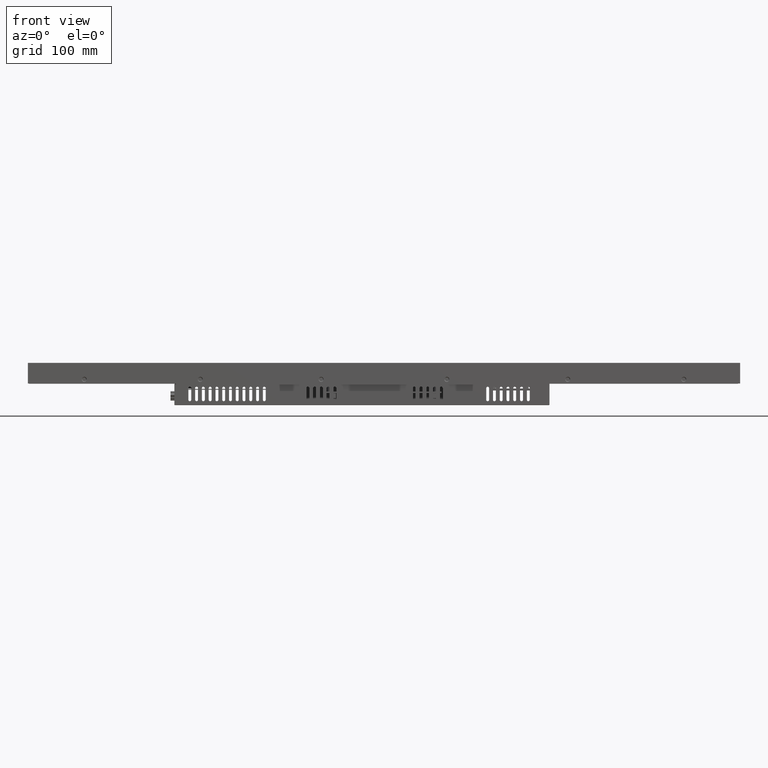
[diagram: clean part render]
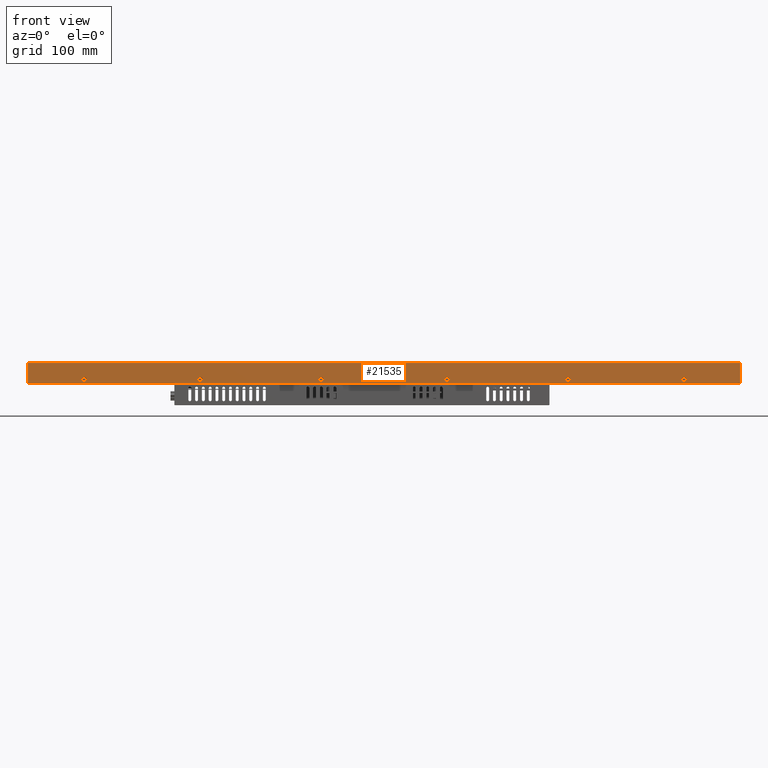
[diagram: same view with one face highlighted and labeled with its STEP entity id]
A machine part, front view. The second image highlights one B-rep face of the part: STEP entity #21535.
In plain terms, the highlighted planar face has unit normal (0, -1, 0).
Its self-contained STEP definition (entity closure, byte-faithful):
#3020 = CARTESIAN_POINT ( 'NONE',  ( -368.2999999999968300, -83.15000000000000600, -21.29999999999999700 ) ) ;
#3028 = CARTESIAN_POINT ( 'NONE',  ( 368.3000000000000100, -83.15000000000009100, -21.29999999999999700 ) ) ;
#3161 = CARTESIAN_POINT ( 'NONE',  ( -187.4505622576270700, -83.15000000000000600, -17.00000009480581700 ) ) ;
#3185 = CARTESIAN_POINT ( 'NONE',  ( -307.4505622576271000, -83.15000000000000600, -17.00000009480578800 ) ) ;
#3205 = CARTESIAN_POINT ( 'NONE',  ( -307.4505622988629600, -83.15000000000000600, -18.50146745895591500 ) ) ;
#3206 = CARTESIAN_POINT ( 'NONE',  ( -307.4505622576271000, -83.15000000000000600, -17.00000009480578800 ) ) ;
#3207 =( BOUNDED_CURVE ( )  B_SPLINE_CURVE ( 3, ( #3206, #3205, #3249, #3248, #3247, #3246, #3245 ),
 .UNSPECIFIED., .F., .T. ) 
 B_SPLINE_CURVE_WITH_KNOTS ( ( 4, 3, 4 ),
 ( 2.441996910364082200E-011, 0.003984535641498446400, 0.007969071362408345800 ),
 .UNSPECIFIED. ) 
 CURVE ( )  GEOMETRIC_REPRESENTATION_ITEM ( )  RATIONAL_B_SPLINE_CURVE ( ( 1.156758910706145300, 0.9380307557074643000, 0.9481987073490826300, 1.187262765631000200, 0.9481987011194077400, 0.9380307551775390900, 1.156758927805394200 ) ) 
 REPRESENTATION_ITEM ( '' )  );
#3220 = CARTESIAN_POINT ( 'NONE',  ( -312.5494377423614200, -83.15000000000000600, -17.00000035001716400 ) ) ;
#3234 = VECTOR ( 'NONE', #3260, 1000.000000000000000 ) ;
#3235 = CARTESIAN_POINT ( 'NONE',  ( -381.3679999999999900, -83.15000000000000600, -21.29999999999999700 ) ) ;
#3236 = LINE ( 'NONE', #3235, #3234 ) ;
#3245 = CARTESIAN_POINT ( 'NONE',  ( -312.5494377423614200, -83.15000000000000600, -17.00000035001716400 ) ) ;
#3246 = CARTESIAN_POINT ( 'NONE',  ( -312.5494375255453900, -83.15000000000002000, -18.50146779701918100 ) ) ;
#3247 = CARTESIAN_POINT ( 'NONE',  ( -311.4853663457581100, -83.15000000000002000, -19.54943785690055700 ) ) ;
#3248 = CARTESIAN_POINT ( 'NONE',  ( -309.9999998033813400, -83.14999999999999100, -19.54943774233365200 ) ) ;
#3249 = CARTESIAN_POINT ( 'NONE',  ( -308.5146333093807100, -83.15000000000000600, -19.54943762776676100 ) ) ;
#3255 = CARTESIAN_POINT ( 'NONE',  ( -192.5494377423615900, -83.15000000000002000, -17.00000035001716400 ) ) ;
#3260 = DIRECTION ( 'NONE',  ( 1.000000000000000000, 0.0000000000000000000, 0.0000000000000000000 ) ) ;
#3290 = CARTESIAN_POINT ( 'NONE',  ( -192.5494377423615900, -83.15000000000002000, -17.00000035001716400 ) ) ;
#3291 = CARTESIAN_POINT ( 'NONE',  ( -192.5494375255453000, -83.15000000000002000, -18.50146779701917800 ) ) ;
#3292 = CARTESIAN_POINT ( 'NONE',  ( -191.4853663457581400, -83.15000000000002000, -19.54943785690054300 ) ) ;
#3293 = CARTESIAN_POINT ( 'NONE',  ( -189.9999998033812900, -83.14999999999999100, -19.54943774233364500 ) ) ;
#3294 = CARTESIAN_POINT ( 'NONE',  ( -188.5146333093808000, -83.15000000000003400, -19.54943762776675700 ) ) ;
#3295 = CARTESIAN_POINT ( 'NONE',  ( -187.4505622988629100, -83.15000000000003400, -18.50146745895594000 ) ) ;
#3296 = CARTESIAN_POINT ( 'NONE',  ( -187.4505622576270700, -83.15000000000000600, -17.00000009480581700 ) ) ;
#3297 =( BOUNDED_CURVE ( )  B_SPLINE_CURVE ( 3, ( #3296, #3295, #3294, #3293, #3292, #3291, #3290 ),
 .UNSPECIFIED., .F., .T. ) 
 B_SPLINE_CURVE_WITH_KNOTS ( ( 4, 3, 4 ),
 ( 2.441996910364082200E-011, 0.003984535641498490600, 0.007969071362408484600 ),
 .UNSPECIFIED. ) 
 CURVE ( )  GEOMETRIC_REPRESENTATION_ITEM ( )  RATIONAL_B_SPLINE_CURVE ( ( 1.156758910706138700, 0.9380307557074644100, 0.9481987073490849600, 1.187262765631000200, 0.9481987011194069600, 0.9380307551775390900, 1.156758927805396500 ) ) 
 REPRESENTATION_ITEM ( '' )  );
#3332 =( BOUNDED_CURVE ( )  B_SPLINE_CURVE ( 3, ( #3371, #3370, #3369, #3368, #3367, #3366, #3365 ),
 .UNSPECIFIED., .F., .F. ) 
 B_SPLINE_CURVE_WITH_KNOTS ( ( 4, 3, 4 ),
 ( 1.783185539664482600E-011, 0.003984536071322613900, 0.007969072228644812100 ),
 .UNSPECIFIED. ) 
 CURVE ( )  GEOMETRIC_REPRESENTATION_ITEM ( )  RATIONAL_B_SPLINE_CURVE ( ( 1.156758989415359800, 0.9380307532681797500, 0.9481986786733932500, 1.187262765631000200, 0.9481986724437172500, 0.9380307527382559800, 1.156759006514616900 ) ) 
 REPRESENTATION_ITEM ( '' )  );
#3345 = CARTESIAN_POINT ( 'NONE',  ( -187.4505622576270700, -83.15000000000000600, -17.00000009480581700 ) ) ;
#3346 = CARTESIAN_POINT ( 'NONE',  ( -187.4505622164173500, -83.14999999999999100, -15.49853245711364600 ) ) ;
#3347 = CARTESIAN_POINT ( 'NONE',  ( -188.5146334311515700, -83.15000000000002000, -14.45056214309943400 ) ) ;
#3348 = CARTESIAN_POINT ( 'NONE',  ( -190.0000001966187100, -83.14999999999999100, -14.45056225766635700 ) ) ;
#3349 = CARTESIAN_POINT ( 'NONE',  ( -191.4853669137096100, -83.15000000000002000, -14.45056237223326400 ) ) ;
#3350 = CARTESIAN_POINT ( 'NONE',  ( -192.5494379591743600, -83.15000000000002000, -15.49853279517692800 ) ) ;
#3351 = CARTESIAN_POINT ( 'NONE',  ( -192.5494377423615900, -83.15000000000002000, -17.00000035001716400 ) ) ;
#3352 =( BOUNDED_CURVE ( )  B_SPLINE_CURVE ( 3, ( #3351, #3350, #3349, #3348, #3347, #3346, #3345 ),
 .UNSPECIFIED., .F., .F. ) 
 B_SPLINE_CURVE_WITH_KNOTS ( ( 4, 3, 4 ),
 ( 1.783183487542627400E-011, 0.003984536071322594000, 0.007969072228644826000 ),
 .UNSPECIFIED. ) 
 CURVE ( )  GEOMETRIC_REPRESENTATION_ITEM ( )  RATIONAL_B_SPLINE_CURVE ( ( 1.156758989415358500, 0.9380307532681796400, 0.9481986786733935800, 1.187262765631000200, 0.9481986724437157000, 0.9380307527382558700, 1.156759006514620700 ) ) 
 REPRESENTATION_ITEM ( '' )  );
#3365 = CARTESIAN_POINT ( 'NONE',  ( -307.4505622576271000, -83.15000000000000600, -17.00000009480578800 ) ) ;
#3366 = CARTESIAN_POINT ( 'NONE',  ( -307.4505622164173200, -83.15000000000002000, -15.49853245711364000 ) ) ;
#3367 = CARTESIAN_POINT ( 'NONE',  ( -308.5146334311515900, -83.15000000000003400, -14.45056214309943600 ) ) ;
#3368 = CARTESIAN_POINT ( 'NONE',  ( -310.0000001966187100, -83.14999999999999100, -14.45056225766635700 ) ) ;
#3369 = CARTESIAN_POINT ( 'NONE',  ( -311.4853669137095800, -83.15000000000002000, -14.45056237223326600 ) ) ;
#3370 = CARTESIAN_POINT ( 'NONE',  ( -312.5494379591743300, -83.15000000000003400, -15.49853279517693100 ) ) ;
#3371 = CARTESIAN_POINT ( 'NONE',  ( -312.5494377423614200, -83.15000000000000600, -17.00000035001716400 ) ) ;
#3403 = CARTESIAN_POINT ( 'NONE',  ( 192.5494377423729300, -83.15000000000000600, -17.00000009480582400 ) ) ;
#3407 = DIRECTION ( 'NONE',  ( 0.0000000000000000000, 0.0000000000000000000, -1.000000000000000000 ) ) ;
#3408 = DIRECTION ( 'NONE',  ( -0.0000000000000000000, 1.000000000000000000, -0.0000000000000000000 ) ) ;
#3409 = CARTESIAN_POINT ( 'NONE',  ( -65.00000000000807200, -83.14999999998917700, -16.99999999998854600 ) ) ;
#3410 = AXIS2_PLACEMENT_3D ( 'NONE', #3409, #3408, #3407 ) ;
#3411 = CIRCLE ( 'NONE', #3410, 2.549437742409822700 ) ;
#3429 = CARTESIAN_POINT ( 'NONE',  ( 187.4505622576385000, -83.15000000000000600, -17.00000035001894400 ) ) ;
#3488 = CARTESIAN_POINT ( 'NONE',  ( 192.5494377423729300, -83.15000000000000600, -17.00000009480582400 ) ) ;
#3489 = CARTESIAN_POINT ( 'NONE',  ( 192.5494377835826200, -83.15000000000002000, -15.49853245711364600 ) ) ;
#3490 = CARTESIAN_POINT ( 'NONE',  ( 191.4853665688484600, -83.15000000000002000, -14.45056214309943100 ) ) ;
#3491 = CARTESIAN_POINT ( 'NONE',  ( 189.9999998033812900, -83.14999999999999100, -14.45056225766635000 ) ) ;
#3492 = CARTESIAN_POINT ( 'NONE',  ( 188.5146330862899600, -83.15000000000003400, -14.45056237223326300 ) ) ;
#3493 = CARTESIAN_POINT ( 'NONE',  ( 187.4505620408250200, -83.15000000000002000, -15.49853279517751200 ) ) ;
#3494 = CARTESIAN_POINT ( 'NONE',  ( 187.4505622576385000, -83.15000000000000600, -17.00000035001894400 ) ) ;
#3495 =( BOUNDED_CURVE ( )  B_SPLINE_CURVE ( 3, ( #3494, #3493, #3492, #3491, #3490, #3489, #3488 ),
 .UNSPECIFIED., .F., .T. ) 
 B_SPLINE_CURVE_WITH_KNOTS ( ( 4, 3, 4 ),
 ( 1.783105571168695700E-011, 0.003984536071323226300, 0.007969072228645792200 ),
 .UNSPECIFIED. ) 
 CURVE ( )  GEOMETRIC_REPRESENTATION_ITEM ( )  RATIONAL_B_SPLINE_CURVE ( ( 1.156758989415535900, 0.9380307532681742000, 0.9481986786733289700, 1.187262765631000200, 0.9481986724437157000, 0.9380307527382558700, 1.156759006514620700 ) ) 
 REPRESENTATION_ITEM ( '' )  );
#3540 = DIRECTION ( 'NONE',  ( 0.0000000000000000000, 0.0000000000000000000, -1.000000000000000000 ) ) ;
#3541 = DIRECTION ( 'NONE',  ( -0.0000000000000000000, 1.000000000000000000, -0.0000000000000000000 ) ) ;
#3542 = CARTESIAN_POINT ( 'NONE',  ( 64.99999999999197100, -83.14999999998917700, -16.99999999998854600 ) ) ;
#3543 = AXIS2_PLACEMENT_3D ( 'NONE', #3542, #3541, #3540 ) ;
#3544 = CIRCLE ( 'NONE', #3543, 2.549437742352979300 ) ;
#3582 = CARTESIAN_POINT ( 'NONE',  ( 312.5494377423728500, -83.14999999999999100, -17.00000009480579500 ) ) ;
#3620 = CARTESIAN_POINT ( 'NONE',  ( 307.4505622576385800, -83.15000000000000600, -17.00000035001715700 ) ) ;
#3621 = CARTESIAN_POINT ( 'NONE',  ( 307.4505624744545600, -83.15000000000003400, -18.50146779701918100 ) ) ;
#3622 = CARTESIAN_POINT ( 'NONE',  ( 308.5146336542420000, -83.15000000000004800, -19.54943785690057100 ) ) ;
#3623 = CARTESIAN_POINT ( 'NONE',  ( 310.0000001966187100, -83.15000000000003400, -19.54943774233366600 ) ) ;
#3624 = CARTESIAN_POINT ( 'NONE',  ( 311.4853666906193400, -83.15000000000004800, -19.54943762776677800 ) ) ;
#3625 = CARTESIAN_POINT ( 'NONE',  ( 312.5494377011370900, -83.15000000000003400, -18.50146745895594000 ) ) ;
#3626 = CARTESIAN_POINT ( 'NONE',  ( 312.5494377423728500, -83.14999999999999100, -17.00000009480579500 ) ) ;
#3627 =( BOUNDED_CURVE ( )  B_SPLINE_CURVE ( 3, ( #3626, #3625, #3624, #3623, #3622, #3621, #3620 ),
 .UNSPECIFIED., .F., .T. ) 
 B_SPLINE_CURVE_WITH_KNOTS ( ( 4, 3, 4 ),
 ( 2.441998962485873100E-011, 0.003984535641498571300, 0.007969071362408607800 ),
 .UNSPECIFIED. ) 
 CURVE ( )  GEOMETRIC_REPRESENTATION_ITEM ( )  RATIONAL_B_SPLINE_CURVE ( ( 1.156758910706141600, 0.9380307557074643000, 0.9481987073490837400, 1.187262765631000200, 0.9481987011194069600, 0.9380307551775390900, 1.156758927805396500 ) ) 
 REPRESENTATION_ITEM ( '' )  );
#3635 = CARTESIAN_POINT ( 'NONE',  ( 307.4505622576385800, -83.15000000000000600, -17.00000035001715700 ) ) ;
#3666 = CARTESIAN_POINT ( 'NONE',  ( 187.4505622576385000, -83.15000000000000600, -17.00000035001894400 ) ) ;
#3667 = CARTESIAN_POINT ( 'NONE',  ( 187.4505624744552100, -83.15000000000004800, -18.50146779701975300 ) ) ;
#3668 = CARTESIAN_POINT ( 'NONE',  ( 188.5146336542424300, -83.15000000000003400, -19.54943785690055700 ) ) ;
#3669 = CARTESIAN_POINT ( 'NONE',  ( 190.0000001966187400, -83.14999999999999100, -19.54943774233364800 ) ) ;
#3670 = CARTESIAN_POINT ( 'NONE',  ( 191.4853666906192600, -83.15000000000002000, -19.54943762776676400 ) ) ;
#3671 = CARTESIAN_POINT ( 'NONE',  ( 192.5494377011370700, -83.15000000000000600, -18.50146745895593300 ) ) ;
#3672 = CARTESIAN_POINT ( 'NONE',  ( 192.5494377423729300, -83.15000000000000600, -17.00000009480582400 ) ) ;
#3673 =( BOUNDED_CURVE ( )  B_SPLINE_CURVE ( 3, ( #3672, #3671, #3670, #3669, #3668, #3667, #3666 ),
 .UNSPECIFIED., .F., .T. ) 
 B_SPLINE_CURVE_WITH_KNOTS ( ( 4, 3, 4 ),
 ( 2.441997594404673800E-011, 0.003984535641498528800, 0.007969071362407464600 ),
 .UNSPECIFIED. ) 
 CURVE ( )  GEOMETRIC_REPRESENTATION_ITEM ( )  RATIONAL_B_SPLINE_CURVE ( ( 1.156758910706140200, 0.9380307557074644100, 0.9481987073490844000, 1.187262765631000200, 0.9481987011194719100, 0.9380307551775446400, 1.156758927805218400 ) ) 
 REPRESENTATION_ITEM ( '' )  );
#3728 = CARTESIAN_POINT ( 'NONE',  ( 312.5494377423728500, -83.14999999999999100, -17.00000009480579500 ) ) ;
#3729 = CARTESIAN_POINT ( 'NONE',  ( 312.5494377835826800, -83.15000000000002000, -15.49853245711364000 ) ) ;
#3730 = CARTESIAN_POINT ( 'NONE',  ( 311.4853665688484100, -83.15000000000003400, -14.45056214309942700 ) ) ;
#3731 = CARTESIAN_POINT ( 'NONE',  ( 309.9999998033813400, -83.14999999999999100, -14.45056225766635000 ) ) ;
#3732 = CARTESIAN_POINT ( 'NONE',  ( 308.5146330862904700, -83.15000000000002000, -14.45056237223326100 ) ) ;
#3733 = CARTESIAN_POINT ( 'NONE',  ( 307.4505620408257300, -83.15000000000002000, -15.49853279517693000 ) ) ;
#3734 = CARTESIAN_POINT ( 'NONE',  ( 307.4505622576385800, -83.15000000000000600, -17.00000035001715700 ) ) ;
#3735 =( BOUNDED_CURVE ( )  B_SPLINE_CURVE ( 3, ( #3734, #3733, #3732, #3731, #3730, #3729, #3728 ),
 .UNSPECIFIED., .F., .T. ) 
 B_SPLINE_CURVE_WITH_KNOTS ( ( 4, 3, 4 ),
 ( 1.783184513603546800E-011, 0.003984536071322549800, 0.007969072228644714900 ),
 .UNSPECIFIED. ) 
 CURVE ( )  GEOMETRIC_REPRESENTATION_ITEM ( )  RATIONAL_B_SPLINE_CURVE ( ( 1.156758989415358900, 0.9380307532681796400, 0.9481986786733933600, 1.187262765631000200, 0.9481986724437161400, 0.9380307527382558700, 1.156759006514618900 ) ) 
 REPRESENTATION_ITEM ( '' )  );
#3753 = CARTESIAN_POINT ( 'NONE',  ( 368.2999999999968300, -83.15000000000029000, 0.0000000000000000000 ) ) ;
#3754 = DIRECTION ( 'NONE',  ( -0.0000000000000000000, 0.0000000000000000000, 1.000000000000000000 ) ) ;
#3755 = VECTOR ( 'NONE', #3754, 1000.000000000000000 ) ;
#3756 = CARTESIAN_POINT ( 'NONE',  ( 368.3000000000000100, -83.15000000000000600, -22.20652921783999600 ) ) ;
#3757 = LINE ( 'NONE', #3756, #3755 ) ;
#3852 = CARTESIAN_POINT ( 'NONE',  ( -368.2999999999937600, -83.15000000000011900, 0.0000000000000000000 ) ) ;
#3853 = DIRECTION ( 'NONE',  ( 0.0000000000000000000, -0.0000000000000000000, -1.000000000000000000 ) ) ;
#3854 = VECTOR ( 'NONE', #3853, 1000.000000000000000 ) ;
#3855 = CARTESIAN_POINT ( 'NONE',  ( -368.2999999999873900, -83.15000000000000600, -22.20652921783999600 ) ) ;
#3856 = LINE ( 'NONE', #3855, #3854 ) ;
#3882 = DIRECTION ( 'NONE',  ( 0.0000000000000000000, -0.0000000000000000000, -1.000000000000000000 ) ) ;
#3883 = DIRECTION ( 'NONE',  ( 0.0000000000000000000, -1.000000000000000000, 0.0000000000000000000 ) ) ;
#3884 = AXIS2_PLACEMENT_3D ( 'NONE', #3887, #3883, #3882 ) ;
#3887 = CARTESIAN_POINT ( 'NONE',  ( -381.3679999999999900, -83.15000000000000600, -22.20652921783999600 ) ) ;
#3888 = PLANE ( 'NONE',  #3884 ) ;
#3889 = FACE_OUTER_BOUND ( 'NONE', #21508, .T. ) ;
#3890 = FACE_BOUND ( 'NONE', #21497, .T. ) ;
#3891 = FACE_BOUND ( 'NONE', #21490, .T. ) ;
#3892 = FACE_BOUND ( 'NONE', #21430, .T. ) ;
#3893 = FACE_BOUND ( 'NONE', #21418, .T. ) ;
#3894 = FACE_BOUND ( 'NONE', #21406, .T. ) ;
#3895 = FACE_BOUND ( 'NONE', #21538, .T. ) ;
#3907 = DIRECTION ( 'NONE',  ( 1.000000000000000000, 0.0000000000000000000, -0.0000000000000000000 ) ) ;
#3908 = VECTOR ( 'NONE', #3907, 1000.000000000000000 ) ;
#3909 = CARTESIAN_POINT ( 'NONE',  ( -382.4080000000000200, -83.15000000000046000, 0.0000000000000000000 ) ) ;
#3910 = LINE ( 'NONE', #3909, #3908 ) ;
#18595 = VERTEX_POINT ( 'NONE', #50395 ) ;
#18603 = EDGE_CURVE ( 'NONE', #18606, #18595, #50392, .T. ) ;
#18606 = VERTEX_POINT ( 'NONE', #50387 ) ;
#18672 = VERTEX_POINT ( 'NONE', #50486 ) ;
#18680 = EDGE_CURVE ( 'NONE', #18681, #18672, #50475, .T. ) ;
#18681 = VERTEX_POINT ( 'NONE', #50470 ) ;
#20701 = VERTEX_POINT ( 'NONE', #3028 ) ;
#20712 = VERTEX_POINT ( 'NONE', #3020 ) ;
#20850 = VERTEX_POINT ( 'NONE', #3161 ) ;
#20870 = VERTEX_POINT ( 'NONE', #3185 ) ;
#20886 = VERTEX_POINT ( 'NONE', #3220 ) ;
#20896 = EDGE_CURVE ( 'NONE', #20870, #20886, #3207, .T. ) ;
#20908 = EDGE_CURVE ( 'NONE', #20712, #20701, #3236, .T. ) ;
#20921 = VERTEX_POINT ( 'NONE', #3255 ) ;
#20925 = EDGE_CURVE ( 'NONE', #20850, #20921, #3297, .T. ) ;
#20954 = EDGE_CURVE ( 'NONE', #20921, #20850, #3352, .T. ) ;
#20977 = EDGE_CURVE ( 'NONE', #20886, #20870, #3332, .T. ) ;
#20986 = VERTEX_POINT ( 'NONE', #3403 ) ;
#21002 = VERTEX_POINT ( 'NONE', #3429 ) ;
#21031 = EDGE_CURVE ( 'NONE', #18672, #18681, #3411, .T. ) ;
#21091 = EDGE_CURVE ( 'NONE', #21002, #20986, #3495, .T. ) ;
#21114 = EDGE_CURVE ( 'NONE', #18595, #18606, #3544, .T. ) ;
#21156 = VERTEX_POINT ( 'NONE', #3582 ) ;
#21168 = VERTEX_POINT ( 'NONE', #3635 ) ;
#21177 = EDGE_CURVE ( 'NONE', #21156, #21168, #3627, .T. ) ;
#21196 = EDGE_CURVE ( 'NONE', #20986, #21002, #3673, .T. ) ;
#21260 = EDGE_CURVE ( 'NONE', #21168, #21156, #3735, .T. ) ;
#21319 = EDGE_CURVE ( 'NONE', #20701, #21321, #3757, .T. ) ;
#21321 = VERTEX_POINT ( 'NONE', #3753 ) ;
#21406 = EDGE_LOOP ( 'NONE', ( #21410, #21414 ) ) ;
#21410 = ORIENTED_EDGE ( 'NONE', *, *, #21196, .T. ) ;
#21414 = ORIENTED_EDGE ( 'NONE', *, *, #21091, .T. ) ;
#21418 = EDGE_LOOP ( 'NONE', ( #21423, #21427 ) ) ;
#21423 = ORIENTED_EDGE ( 'NONE', *, *, #18603, .T. ) ;
#21427 = ORIENTED_EDGE ( 'NONE', *, *, #21114, .T. ) ;
#21430 = EDGE_LOOP ( 'NONE', ( #21432, #21484 ) ) ;
#21432 = ORIENTED_EDGE ( 'NONE', *, *, #18680, .T. ) ;
#21469 = EDGE_CURVE ( 'NONE', #21471, #20712, #3856, .T. ) ;
#21471 = VERTEX_POINT ( 'NONE', #3852 ) ;
#21484 = ORIENTED_EDGE ( 'NONE', *, *, #21031, .T. ) ;
#21490 = EDGE_LOOP ( 'NONE', ( #21494, #21496 ) ) ;
#21494 = ORIENTED_EDGE ( 'NONE', *, *, #20925, .T. ) ;
#21496 = ORIENTED_EDGE ( 'NONE', *, *, #20954, .T. ) ;
#21497 = EDGE_LOOP ( 'NONE', ( #21501, #21506 ) ) ;
#21501 = ORIENTED_EDGE ( 'NONE', *, *, #20896, .T. ) ;
#21506 = ORIENTED_EDGE ( 'NONE', *, *, #20977, .T. ) ;
#21508 = EDGE_LOOP ( 'NONE', ( #21513, #21521, #21527, #21578 ) ) ;
#21513 = ORIENTED_EDGE ( 'NONE', *, *, #21518, .F. ) ;
#21518 = EDGE_CURVE ( 'NONE', #21471, #21321, #3910, .T. ) ;
#21521 = ORIENTED_EDGE ( 'NONE', *, *, #21469, .T. ) ;
#21527 = ORIENTED_EDGE ( 'NONE', *, *, #20908, .T. ) ;
#21535 = ADVANCED_FACE ( 'NONE', ( #3895, #3894, #3893, #3892, #3891, #3890, #3889 ), #3888, .T. ) ;
#21538 = EDGE_LOOP ( 'NONE', ( #21545, #21547 ) ) ;
#21545 = ORIENTED_EDGE ( 'NONE', *, *, #21177, .T. ) ;
#21547 = ORIENTED_EDGE ( 'NONE', *, *, #21260, .T. ) ;
#21578 = ORIENTED_EDGE ( 'NONE', *, *, #21319, .T. ) ;
#50387 = CARTESIAN_POINT ( 'NONE',  ( 64.99999999999197100, -83.14999999998917700, -19.54943774234152400 ) ) ;
#50388 = DIRECTION ( 'NONE',  ( 0.0000000000000000000, 0.0000000000000000000, -1.000000000000000000 ) ) ;
#50389 = DIRECTION ( 'NONE',  ( -0.0000000000000000000, 1.000000000000000000, -0.0000000000000000000 ) ) ;
#50390 = CARTESIAN_POINT ( 'NONE',  ( 64.99999999999197100, -83.14999999998917700, -16.99999999998854600 ) ) ;
#50391 = AXIS2_PLACEMENT_3D ( 'NONE', #50390, #50389, #50388 ) ;
#50392 = CIRCLE ( 'NONE', #50391, 2.549437742352979300 ) ;
#50395 = CARTESIAN_POINT ( 'NONE',  ( 64.99999999999197100, -83.14999999998917700, -14.45056225763556600 ) ) ;
#50470 = CARTESIAN_POINT ( 'NONE',  ( -65.00000000000807200, -83.14999999998917700, -19.54943774239836800 ) ) ;
#50471 = DIRECTION ( 'NONE',  ( 0.0000000000000000000, 0.0000000000000000000, -1.000000000000000000 ) ) ;
#50472 = DIRECTION ( 'NONE',  ( -0.0000000000000000000, 1.000000000000000000, -0.0000000000000000000 ) ) ;
#50473 = CARTESIAN_POINT ( 'NONE',  ( -65.00000000000807200, -83.14999999998917700, -16.99999999998854600 ) ) ;
#50474 = AXIS2_PLACEMENT_3D ( 'NONE', #50473, #50472, #50471 ) ;
#50475 = CIRCLE ( 'NONE', #50474, 2.549437742409822700 ) ;
#50486 = CARTESIAN_POINT ( 'NONE',  ( -65.00000000000807200, -83.14999999998917700, -14.45056225757872200 ) ) ;